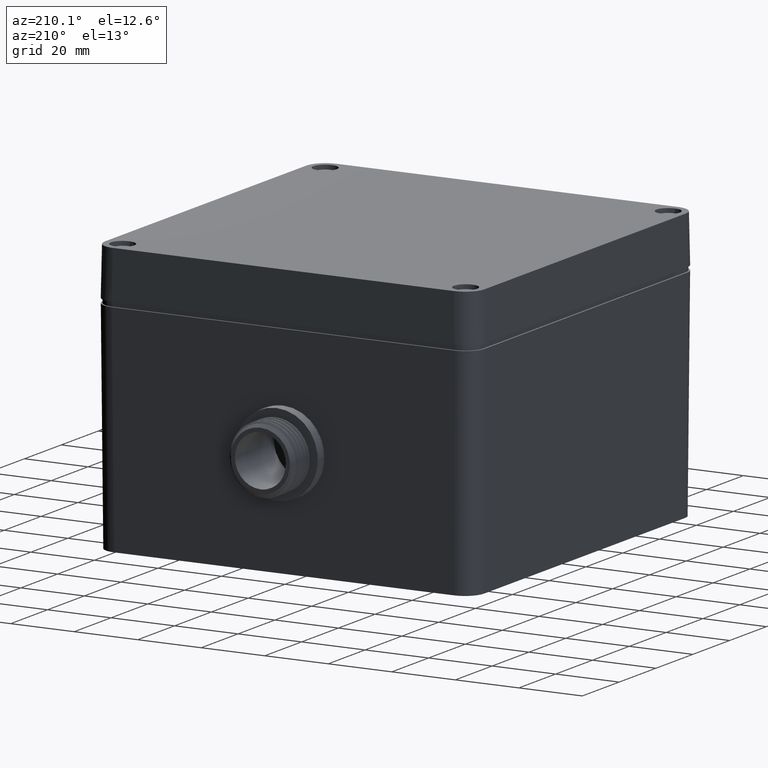
[diagram: clean part render]
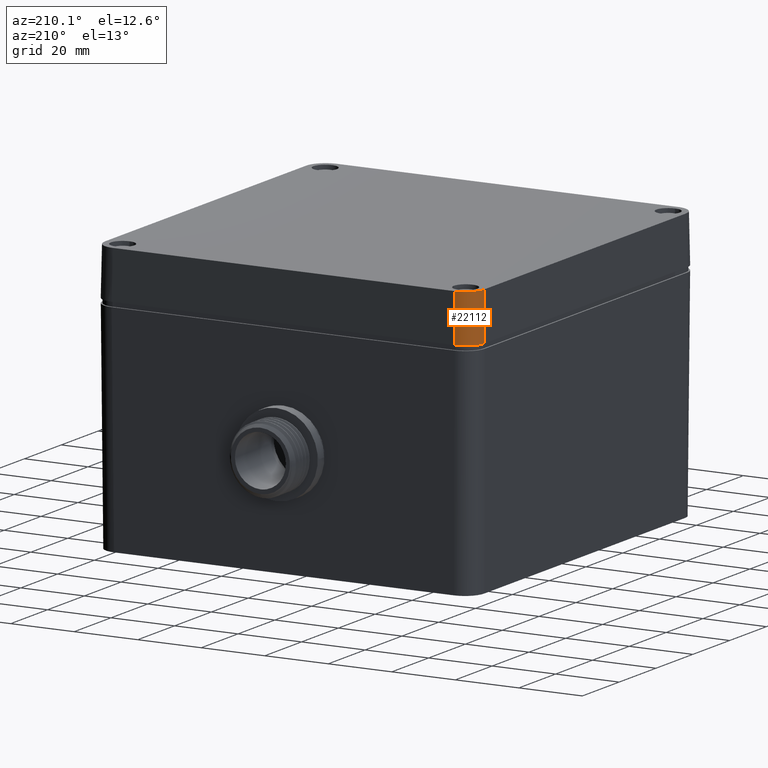
[diagram: same view with one face highlighted and labeled with its STEP entity id]
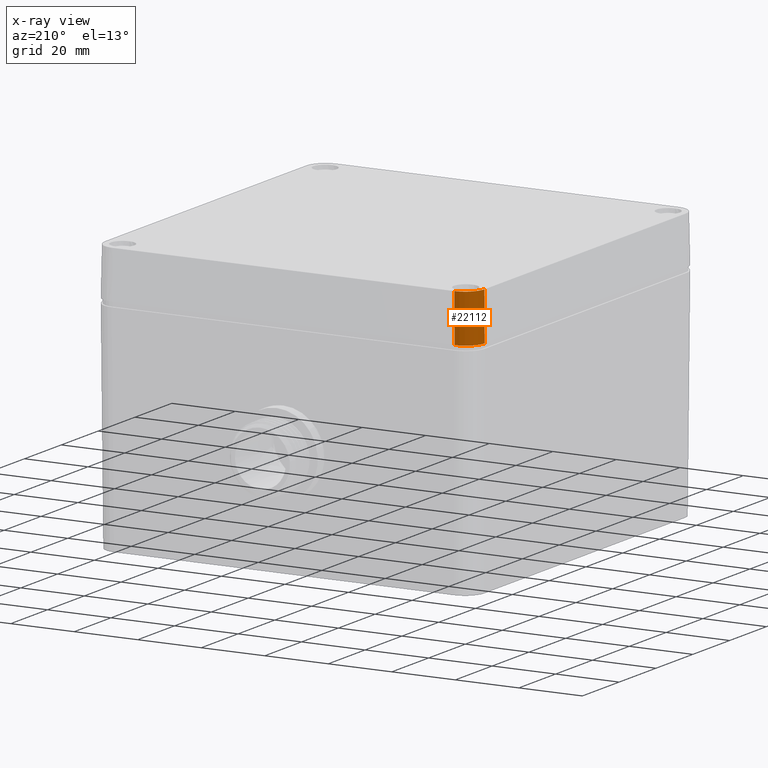
[diagram: x-ray of the same camera — body ghosted, the highlighted face saturated]
A machine part, auxiliary view. The second image highlights one B-rep face of the part: STEP entity #22112.
The next image is the same camera in x-ray: the body ghosted, the highlighted face saturated — about 0% of this face is hidden behind the body in this view.
In plain terms, the highlighted cylindrical surface (edge-blend (fillet) strip) has radius 6 mm, axis along (-0.0174, 0.0174, -0.9997).
Its self-contained STEP definition (entity closure, byte-faithful):
#372 = CARTESIAN_POINT ( 'NONE',  ( -2.258749811857536649, 2.343730246301910292, 0.5905511811023630431 ) ) ;
#545 = CARTESIAN_POINT ( 'NONE',  ( -2.271274848139780644, 2.333539493924139840, 0.5905511811023630431 ) ) ;
#726 = CARTESIAN_POINT ( 'NONE',  ( -2.351826164530508745, 2.170476874015887514, 0.5905511811023631541 ) ) ;
#898 = CARTESIAN_POINT ( 'NONE',  ( -2.332051437052563347, 2.249870237643407211, 0.5905511811023632651 ) ) ;
#1523 = CARTESIAN_POINT ( 'NONE',  ( -2.357759378019586904, 2.160948580462492163, 0.2546737241136102226 ) ) ;
#1866 = CARTESIAN_POINT ( 'NONE',  ( -2.357675594543094721, 2.160866185557570596, 0.2594736736497622043 ) ) ;
#2015 = CARTESIAN_POINT ( 'NONE',  ( -2.118001631141470664, 2.393584514308314759, 0.4577632539836478109 ) ) ;
#2293 = VERTEX_POINT ( 'NONE', #24289 ) ;
#2302 = CARTESIAN_POINT ( 'NONE',  ( -2.147095608080510587, 2.389215519715099934, 0.5905511811023630431 ) ) ;
#2467 = CARTESIAN_POINT ( 'NONE',  ( -2.153300177564546392, 2.388263473255928915, 0.5905511811023629321 ) ) ;
#2705 = LINE ( 'NONE', #7789, #3605 ) ;
#2826 = CARTESIAN_POINT ( 'NONE',  ( -2.241821677867451790, 2.354824831390403883, 0.5905511811023631541 ) ) ;
#3357 = CARTESIAN_POINT ( 'NONE',  ( -2.190702466979835172, 2.379101731634310379, 0.5905511811023629321 ) ) ;
#3531 = CARTESIAN_POINT ( 'NONE',  ( -2.323578407172583127, 2.267717747450708199, 0.5905511811023630431 ) ) ;
#3605 = VECTOR ( 'NONE', #29178, 39.37007874015748143 ) ;
#3923 = CARTESIAN_POINT ( 'NONE',  ( -2.353186300433287137, 2.156371689953322957, 0.5166651635670536091 ) ) ;
#3999 = CARTESIAN_POINT ( 'NONE',  ( -2.357428798480208698, 2.160633458050129629, 0.2736125747066125991 ) ) ;
#4133 = CARTESIAN_POINT ( 'NONE',  ( -2.118251713547718573, 2.393810327293759865, 0.4448265221601102049 ) ) ;
#4163 = CARTESIAN_POINT ( 'NONE',  ( -2.355455196875220647, 2.158722183474512057, 0.3866792883978055206 ) ) ;
#4308 = CARTESIAN_POINT ( 'NONE',  ( -2.118278507608692962, 2.393834249211448384, 0.4434560379632445093 ) ) ;
#4637 = CARTESIAN_POINT ( 'NONE',  ( -2.116989114961922436, 2.392490696650046100, 0.5204277873474318916 ) ) ;
#4969 = ORIENTED_EDGE ( 'NONE', *, *, #15867, .F. ) ;
#5274 = CARTESIAN_POINT ( 'NONE',  ( -2.157724176457319842, 2.387496997146263844, 0.5905511811023630431 ) ) ;
#5636 = CARTESIAN_POINT ( 'NONE',  ( -2.201345238140684835, 2.375204210591046472, 0.5905511811023629321 ) ) ;
#5807 = CARTESIAN_POINT ( 'NONE',  ( -2.308692702124203411, 2.291272084416746235, 0.5905511811023631541 ) ) ;
#5908 = CARTESIAN_POINT ( 'NONE',  ( -2.116953459547117333, 2.392422119498271549, 0.5243560838859882001 ) ) ;
#5964 = LINE ( 'NONE', #11758, #10337 ) ;
#6160 = CARTESIAN_POINT ( 'NONE',  ( -2.334397713974107891, 2.244319111191826366, 0.5905511811023630431 ) ) ;
#6611 = ORIENTED_EDGE ( 'NONE', *, *, #32192, .T. ) ;
#6770 = CARTESIAN_POINT ( 'NONE',  ( -2.120681860594689994, 2.396188353262975301, 0.3085892288246848691 ) ) ;
#7103 = CARTESIAN_POINT ( 'NONE',  ( -2.120875610328719407, 2.396391450179511828, 0.2969539109361580276 ) ) ;
#7266 = CARTESIAN_POINT ( 'NONE',  ( -2.126020229490665603, 2.401574803149606474, 4.166875851726629793E-16 ) ) ;
#7424 = ORIENTED_EDGE ( 'NONE', *, *, #25541, .F. ) ;
#7434 = CARTESIAN_POINT ( 'NONE',  ( -2.118214600594668706, 2.393777111637148902, 0.4467294409425989210 ) ) ;
#7789 = CARTESIAN_POINT ( 'NONE',  ( -2.351834889532582906, 2.155020473353854271, 0.5940874422159685420 ) ) ;
#8259 = CARTESIAN_POINT ( 'NONE',  ( -2.345019048488377056, 2.211878771265021193, 0.5905511811023632651 ) ) ;
#8433 = CARTESIAN_POINT ( 'NONE',  ( -2.347065895307877348, 2.202595370139273534, 0.5905511811023630431 ) ) ;
#8524 = CARTESIAN_POINT ( 'NONE',  ( -2.116724956076106334, 2.391256627393425038, 0.5905513414319841781 ) ) ;
#8632 = B_SPLINE_CURVE_WITH_KNOTS ( 'NONE', 3,
 ( #32905, #8892, #16785, #19923 ),
 .UNSPECIFIED., .F., .F.,
 ( 4, 4 ),
 ( 0.000000000000000000, 1.000000000000000000 ),
 .UNSPECIFIED. ) ;
#8656 = VERTEX_POINT ( 'NONE', #3923 ) ;
#8790 = CARTESIAN_POINT ( 'NONE',  ( -2.310995759518438497, 2.287947230570575474, 0.5905511811023633761 ) ) ;
#8892 = CARTESIAN_POINT ( 'NONE',  ( -2.352872417280100326, 2.156192158572715289, 0.5346475173697995409 ) ) ;
#8925 = EDGE_LOOP ( 'NONE', ( #4969, #12382, #7424, #21282, #16895, #21583, #6611 ) ) ;
#9399 = CARTESIAN_POINT ( 'NONE',  ( -2.124113185005348292, 2.399721508718172913, 0.1061751668678852373 ) ) ;
#9426 = CARTESIAN_POINT ( 'NONE',  ( -2.357592569271988125, 2.160788008687590800, 0.2642301806762369920 ) ) ;
#9737 = CARTESIAN_POINT ( 'NONE',  ( -2.117005070536920552, 2.392518829502706890, 0.5188161826113530939 ) ) ;
#9964 = CARTESIAN_POINT ( 'NONE',  ( -2.115650394613739937, 2.155020473353854271, 0.5899648265221221211 ) ) ;
#10133 = DIRECTION ( 'NONE',  ( -0.9998476951563911586, 0.000000000000000000, 0.01745240643728558291 ) ) ;
#10337 = VECTOR ( 'NONE', #24723, 39.37007874015748143 ) ;
#10716 = CARTESIAN_POINT ( 'NONE',  ( -2.116724956076106334, 2.391256627393425038, 0.5905513414319841781 ) ) ;
#10763 = VERTEX_POINT ( 'NONE', #20582 ) ;
#10892 = CARTESIAN_POINT ( 'NONE',  ( -2.199638178454049520, 2.375859940198239872, 0.5905511811023630431 ) ) ;
#11254 = CARTESIAN_POINT ( 'NONE',  ( -2.312152219687682919, 2.286230277437554470, 0.5905511811023631541 ) ) ;
#11615 = CARTESIAN_POINT ( 'NONE',  ( -2.158556746427567674, 2.387345269908674350, 0.5905511811023630431 ) ) ;
#11689 = B_SPLINE_CURVE_WITH_KNOTS ( 'NONE', 3,
 ( #31576, #23698, #28956, #2302, #2467, #13178, #5274, #11615, #16497, #13884, #3357, #32283, #10892, #5636, #14063, #24749, #24568, #24214, #2826, #372, #545, #13523, #19491, #18964, #5807, #8790, #11254, #24924, #3531, #32803, #898, #16151, #6160, #27376, #22293, #8259, #27013, #8433, #21589, #16324, #32450, #726, #30191 ),
 .UNSPECIFIED., .F., .F.,
 ( 4, 1, 1, 1, 2, 2, 1, 1, 2, 2, 1, 2, 2, 2, 1, 1, 2, 2, 1, 1, 2, 2, 1, 1, 1, 2, 2, 4 ),
 ( 0.000000000000000000, 0.06249999999999922284, 0.09374999999999764078, 0.1093749999999968497, 0.1171874999999964612, 0.1249999999999960726, 0.1874999999999968914, 0.2187499999999965306, 0.2343749999999963640, 0.2499999999999961975, 0.3124999999999958922, 0.3437499999999947820, 0.3749999999999936717, 0.4999999999999886202, 0.5624999999999867883, 0.5937499999999866773, 0.6093749999999871214, 0.6249999999999875655, 0.6874999999999901190, 0.7187499999999900080, 0.7343749999999898970, 0.7499999999999897859, 0.8124999999999944489, 0.8437499999999967804, 0.8593749999999977796, 0.8671874999999982236, 0.8749999999999986677, 1.000000000000000000 ),
 .UNSPECIFIED. ) ;
#11758 = CARTESIAN_POINT ( 'NONE',  ( -2.351834889532582906, 2.155020473353854271, 0.5940874422159685420 ) ) ;
#12034 = CARTESIAN_POINT ( 'NONE',  ( -2.117743560577517670, 2.393345576736469305, 0.4714518056496295184 ) ) ;
#12206 = CARTESIAN_POINT ( 'NONE',  ( -2.118287882656067822, 2.393842608634968006, 0.4429771270657482662 ) ) ;
#12233 = CARTESIAN_POINT ( 'NONE',  ( -2.356510009434823250, 2.159756641094913387, 0.3262495783038110164 ) ) ;
#12382 = ORIENTED_EDGE ( 'NONE', *, *, #12657, .T. ) ;
#12475 = B_SPLINE_CURVE_WITH_KNOTS ( 'NONE', 3,
 ( #28187, #23263, #19952, #20627, #33777, #20463, #1866, #9426, #3999, #30821, #12233, #4163, #14867, #31153 ),
 .UNSPECIFIED., .F., .F.,
 ( 4, 2, 1, 1, 1, 1, 1, 1, 1, 1, 4 ),
 ( 0.4312552481489749789, 0.4318772926741235030, 0.4324993371992714719, 0.4337434262495684645, 0.4362316043501615059, 0.4412079605513485325, 0.4511606729537209759, 0.4710660977584670284, 0.5108769473679579676, 0.5904986465869410672, 0.7497420450249069335 ),
 .UNSPECIFIED. ) ;
#12657 = EDGE_CURVE ( 'NONE', #8656, #30533, #8632, .T. ) ;
#12721 = CARTESIAN_POINT ( 'NONE',  ( -2.120464315338150385, 2.395961814449373506, 0.3215675170712120057 ) ) ;
#12890 = EDGE_CURVE ( 'NONE', #10763, #16469, #2705, .T. ) ;
#13178 = CARTESIAN_POINT ( 'NONE',  ( -2.155955130061595781, 2.387809689443627370, 0.5905511811023629321 ) ) ;
#13273 = CYLINDRICAL_SURFACE ( 'NONE', #18528, 0.2362204724409544543 ) ;
#13523 = CARTESIAN_POINT ( 'NONE',  ( -2.288449981996088844, 2.316366940148088194, 0.5905511811023631541 ) ) ;
#13884 = CARTESIAN_POINT ( 'NONE',  ( -2.178044973525601335, 2.383114652344492157, 0.5905511811023632651 ) ) ;
#14063 = CARTESIAN_POINT ( 'NONE',  ( -2.210551217899763277, 2.371535522254586414, 0.5905511811023632651 ) ) ;
#14833 = CARTESIAN_POINT ( 'NONE',  ( -2.120900610079761606, 2.396417744280469275, 0.2954475348196425877 ) ) ;
#14867 = CARTESIAN_POINT ( 'NONE',  ( -2.354801240639432969, 2.158033331619531481, 0.4241453011187913402 ) ) ;
#15342 = CARTESIAN_POINT ( 'NONE',  ( -2.120041650460103622, 2.395526567643517790, 0.3465025962567933604 ) ) ;
#15867 = EDGE_CURVE ( 'NONE', #8656, #2293, #5964, .T. ) ;
#16151 = CARTESIAN_POINT ( 'NONE',  ( -2.333609898100249325, 2.246228344326709259, 0.5905511811023629321 ) ) ;
#16324 = CARTESIAN_POINT ( 'NONE',  ( -2.347633584883245472, 2.199739286315883113, 0.5905511811023630431 ) ) ;
#16469 = VERTEX_POINT ( 'NONE', #1523 ) ;
#16497 = CARTESIAN_POINT ( 'NONE',  ( -2.166972588125668953, 2.385759292667021025, 0.5905511811023633761 ) ) ;
#16514 = CARTESIAN_POINT ( 'NONE',  ( -2.351886699073732157, 2.156089557629866427, 0.5905513565258878605 ) ) ;
#16785 = CARTESIAN_POINT ( 'NONE',  ( -2.352442664022391217, 2.156098063601153747, 0.5592763076392686106 ) ) ;
#16895 = ORIENTED_EDGE ( 'NONE', *, *, #21419, .T. ) ;
#17461 = CARTESIAN_POINT ( 'NONE',  ( -2.118283892012403857, 2.393839051246719141, 0.4431809296706866186 ) ) ;
#18528 = AXIS2_PLACEMENT_3D ( 'NONE', #9964, #20980, #10133 ) ;
#18964 = CARTESIAN_POINT ( 'NONE',  ( -2.305178173363370497, 2.296209783591343534, 0.5905511811023632651 ) ) ;
#19105 = CARTESIAN_POINT ( 'NONE',  ( -2.126020229490665603, 2.401574803149606474, 4.166875851726629793E-16 ) ) ;
#19229 = CARTESIAN_POINT ( 'NONE',  ( -2.116736923175406737, 2.391551919637975310, 0.5741535942027498063 ) ) ;
#19491 = CARTESIAN_POINT ( 'NONE',  ( -2.296558007568398452, 2.307384010502779415, 0.5905511811023630431 ) ) ;
#19919 = CARTESIAN_POINT ( 'NONE',  ( -2.126020229490665603, 2.401574803149606474, 4.166875851726629793E-16 ) ) ;
#19923 = CARTESIAN_POINT ( 'NONE',  ( -2.351886699073732157, 2.156089557629866427, 0.5905513565258878605 ) ) ;
#19952 = CARTESIAN_POINT ( 'NONE',  ( -2.357753369622665574, 2.160939316344649530, 0.2550179449307964918 ) ) ;
#20433 = CARTESIAN_POINT ( 'NONE',  ( -2.120895558681075599, 2.396412429730662819, 0.2957520027795503270 ) ) ;
#20463 = CARTESIAN_POINT ( 'NONE',  ( -2.357717392144314861, 2.160905499380370465, 0.2570790926336484206 ) ) ;
#20582 = CARTESIAN_POINT ( 'NONE',  ( -2.362204724409499690, 2.165390308230775496, 3.787349016415928688E-16 ) ) ;
#20595 = CARTESIAN_POINT ( 'NONE',  ( -2.119246023245135557, 2.394727400170068243, 0.3922867654478752186 ) ) ;
#20627 = CARTESIAN_POINT ( 'NONE',  ( -2.357747364612527541, 2.160933673252366294, 0.2553619716834449327 ) ) ;
#20713 = VERTEX_POINT ( 'NONE', #19919 ) ;
#20761 = CARTESIAN_POINT ( 'NONE',  ( -2.117015857516487021, 2.392537305391788660, 0.5177577685491909776 ) ) ;
#20861 = B_SPLINE_CURVE_WITH_KNOTS ( 'NONE', 3,
 ( #8524, #19229, #22561, #29920, #5908, #4637, #9737, #20761, #34090, #28667, #31455, #12034, #2015, #23237, #7434, #4133, #22901, #4308, #17461, #12206, #28328, #20595, #15342, #12721, #6770, #28162, #23409, #7103, #26033, #20433, #14833, #33925, #9399, #7266 ),
 .UNSPECIFIED., .F., .F.,
 ( 4, 1, 1, 1, 1, 2, 2, 1, 1, 1, 1, 1, 1, 1, 2, 2, 1, 1, 1, 1, 1, 1, 1, 2, 2, 4 ),
 ( 0.000000000000000000, 0.06250000000001605660, 0.09375000000002409184, 0.1093750000000283107, 0.1171875000000304201, 0.1210937500000317246, 0.1250000000000330291, 0.1875000000000496825, 0.2187500000000579814, 0.2343750000000619504, 0.2421875000000639488, 0.2460937500000649480, 0.2480468750000654476, 0.2490234375000656974, 0.2495117187500658085, 0.2500000000000659472, 0.3750000000000596190, 0.4375000000000565659, 0.4687500000000549560, 0.4843750000000540679, 0.4921875000000536793, 0.4960937500000534017, 0.4980468750000531797, 0.4990234375000529576, 0.5000000000000527356, 1.000000000000000000 ),
 .UNSPECIFIED. ) ;
#20980 = DIRECTION ( 'NONE',  ( -0.01744974916068475768, 0.01744974916068490686, -0.9996954598818874604 ) ) ;
#21282 = ORIENTED_EDGE ( 'NONE', *, *, #25939, .T. ) ;
#21419 = EDGE_CURVE ( 'NONE', #20713, #10763, #24392, .T. ) ;
#21583 = ORIENTED_EDGE ( 'NONE', *, *, #12890, .T. ) ;
#21589 = CARTESIAN_POINT ( 'NONE',  ( -2.347441222381133397, 2.200728434334144001, 0.5905511811023631541 ) ) ;
#21738 = CARTESIAN_POINT ( 'NONE',  ( -2.362204724409499690, 2.165390308230775496, 3.787349016415928688E-16 ) ) ;
#22112 = ADVANCED_FACE ( 'NONE', ( #26079 ), #13273, .T. ) ;
#22263 = CARTESIAN_POINT ( 'NONE',  ( -2.362204724409501466, 2.303752708305543795, 5.188752099100799514E-16 ) ) ;
#22293 = CARTESIAN_POINT ( 'NONE',  ( -2.341623062090084861, 2.224715744288467079, 0.5905511811023631541 ) ) ;
#22561 = CARTESIAN_POINT ( 'NONE',  ( -2.116783606182841115, 2.391928396744773533, 0.5526266548042348958 ) ) ;
#22901 = CARTESIAN_POINT ( 'NONE',  ( -2.118270443386119251, 2.393827054699675827, 0.4438682109892497785 ) ) ;
#23237 = CARTESIAN_POINT ( 'NONE',  ( -2.118141761583582916, 2.393711636963019807, 0.4504804642709651641 ) ) ;
#23263 = CARTESIAN_POINT ( 'NONE',  ( -2.357757825370244031, 2.160943503051141690, 0.2547626753348681272 ) ) ;
#23409 = CARTESIAN_POINT ( 'NONE',  ( -2.120847737644741215, 2.396362157741675603, 0.2986320601016206333 ) ) ;
#23698 = CARTESIAN_POINT ( 'NONE',  ( -2.123911773936182801, 2.391226228903419848, 0.5905511811023631541 ) ) ;
#24214 = CARTESIAN_POINT ( 'NONE',  ( -2.238519968442771457, 2.356870507084385835, 0.5905511811023630431 ) ) ;
#24289 = CARTESIAN_POINT ( 'NONE',  ( -2.354476435663775735, 2.157662213539567109, 0.4427533657138661427 ) ) ;
#24392 =( BOUNDED_CURVE ( )  B_SPLINE_CURVE ( 3, ( #19105, #29798, #22263, #21738 ),
 .UNSPECIFIED., .F., .F. ) 
 B_SPLINE_CURVE_WITH_KNOTS ( ( 4, 4 ),
 ( 5.497939437029749854, 7.068431177329459913 ),
 .UNSPECIFIED. ) 
 CURVE ( )  GEOMETRIC_REPRESENTATION_ITEM ( )  RATIONAL_B_SPLINE_CURVE ( ( 1.000000000000000000, 0.8048096403827920131, 0.8048096403827920131, 1.000000000000000000 ) ) 
 REPRESENTATION_ITEM ( '' )  );
#24568 = CARTESIAN_POINT ( 'NONE',  ( -2.231697142703160441, 2.360869171387564247, 0.5905511811023631541 ) ) ;
#24723 = DIRECTION ( 'NONE',  ( -0.01744974916068490686, 0.01744974916068490686, -0.9996954598818874604 ) ) ;
#24749 = CARTESIAN_POINT ( 'NONE',  ( -2.221327414576830250, 2.366601239433829384, 0.5905511811023632651 ) ) ;
#24924 = CARTESIAN_POINT ( 'NONE',  ( -2.317585492465235486, 2.277942865898497704, 0.5905511811023630431 ) ) ;
#25418 = VERTEX_POINT ( 'NONE', #10716 ) ;
#25541 = EDGE_CURVE ( 'NONE', #25418, #30533, #11689, .T. ) ;
#25939 = EDGE_CURVE ( 'NONE', #25418, #20713, #20861, .T. ) ;
#26033 = CARTESIAN_POINT ( 'NONE',  ( -2.120887576566554245, 2.396404033930357169, 0.2962329940549895957 ) ) ;
#26079 = FACE_OUTER_BOUND ( 'NONE', #8925, .T. ) ;
#27013 = CARTESIAN_POINT ( 'NONE',  ( -2.346486432621875284, 2.205390811469559065, 0.5905511811023631541 ) ) ;
#27376 = CARTESIAN_POINT ( 'NONE',  ( -2.337921556952175628, 2.235480669907170981, 0.5905511811023629321 ) ) ;
#28162 = CARTESIAN_POINT ( 'NONE',  ( -2.120792186427329362, 2.396303851457175949, 0.3019723975368476809 ) ) ;
#28187 = CARTESIAN_POINT ( 'NONE',  ( -2.357759378019586904, 2.160948580462492163, 0.2546737241136102226 ) ) ;
#28328 = CARTESIAN_POINT ( 'NONE',  ( -2.118649261416664764, 2.394164677986820422, 0.4245257862496036316 ) ) ;
#28667 = CARTESIAN_POINT ( 'NONE',  ( -2.117102017340890541, 2.392676807666491712, 0.5097660301082447276 ) ) ;
#28956 = CARTESIAN_POINT ( 'NONE',  ( -2.134647747815423102, 2.390692482888632675, 0.5905511811023630431 ) ) ;
#29178 = DIRECTION ( 'NONE',  ( 0.01744974916068475768, -0.01744974916068490686, 0.9996954598818874604 ) ) ;
#29798 = CARTESIAN_POINT ( 'NONE',  ( -2.264382629565435234, 2.401574803149610471, 5.019812011525096157E-16 ) ) ;
#29920 = CARTESIAN_POINT ( 'NONE',  ( -2.116888445753575265, 2.392273223350259936, 0.5328842187998774627 ) ) ;
#30191 = CARTESIAN_POINT ( 'NONE',  ( -2.351886699073732157, 2.156089557629866427, 0.5905513565258878605 ) ) ;
#30533 = VERTEX_POINT ( 'NONE', #16514 ) ;
#30821 = CARTESIAN_POINT ( 'NONE',  ( -2.357110376088932924, 2.160331569185149903, 0.2918548826803952778 ) ) ;
#31153 = CARTESIAN_POINT ( 'NONE',  ( -2.354476435663775735, 2.157662213539567109, 0.4427533657138661427 ) ) ;
#31455 = CARTESIAN_POINT ( 'NONE',  ( -2.117316180729681641, 2.392928938102775405, 0.4953207980410860856 ) ) ;
#31576 = CARTESIAN_POINT ( 'NONE',  ( -2.116724956076106334, 2.391256627393425038, 0.5905513414319841781 ) ) ;
#32192 = EDGE_CURVE ( 'NONE', #16469, #2293, #12475, .T. ) ;
#32283 = CARTESIAN_POINT ( 'NONE',  ( -2.196071330707573654, 2.377183156972683786, 0.5905511811023629321 ) ) ;
#32450 = CARTESIAN_POINT ( 'NONE',  ( -2.350463957298686957, 2.184732533523133569, 0.5905511811023631541 ) ) ;
#32803 = CARTESIAN_POINT ( 'NONE',  ( -2.329647868902820829, 2.255298049543340344, 0.5905511811023632651 ) ) ;
#32905 = CARTESIAN_POINT ( 'NONE',  ( -2.353186300433287137, 2.156371689953322957, 0.5166651635670536091 ) ) ;
#33777 = CARTESIAN_POINT ( 'NONE',  ( -2.357738362185940684, 2.160925212638724169, 0.2558777202498653813 ) ) ;
#33925 = CARTESIAN_POINT ( 'NONE',  ( -2.122407624419183403, 2.398003529935297529, 0.2045986475408412553 ) ) ;
#34090 = CARTESIAN_POINT ( 'NONE',  ( -2.117022172643510558, 2.392547771957403313, 0.5171581698817988570 ) ) ;